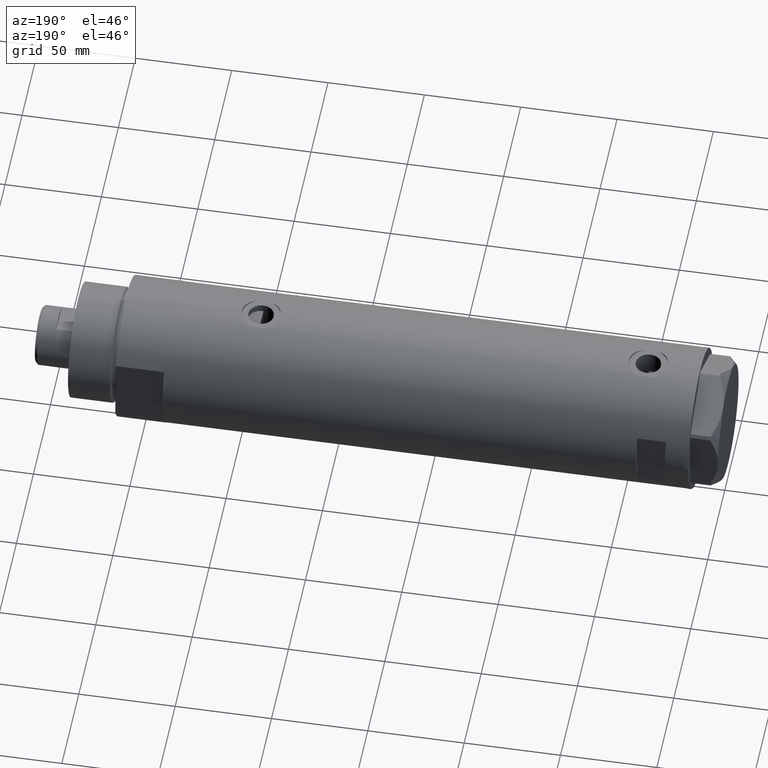
[diagram: clean part render]
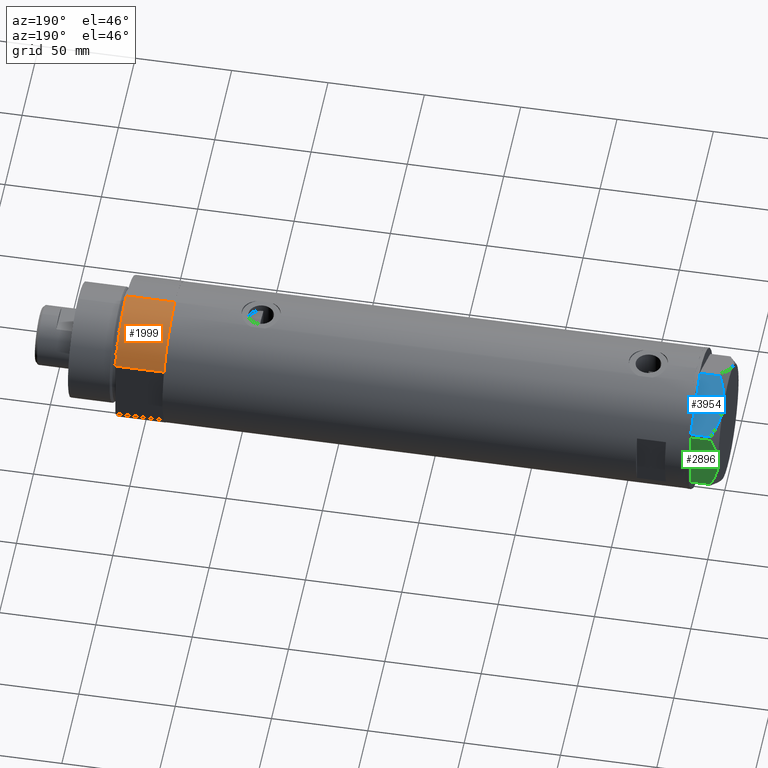
[diagram: same view with three faces highlighted in distinct colors, each labeled with its STEP entity id]
A machine part, auxiliary view with three faces highlighted in distinct colors.
Their STEP definitions:

[orange] entity #1999 — the highlighted cylindrical surface (partial cylindrical patch) has radius 36.5 mm, axis along (-1, -0, 0).
#14 = AXIS2_PLACEMENT_3D ( 'NONE', #2878, #2903, #1840 ) ;
#91 = VECTOR ( 'NONE', #2256, 1000.000000000000000 ) ;
#161 = AXIS2_PLACEMENT_3D ( 'NONE', #4459, #4144, #4121 ) ;
#296 = EDGE_CURVE ( 'NONE', #1375, #2864, #2230, .T. ) ;
#331 = EDGE_CURVE ( 'NONE', #1708, #2864, #2462, .T. ) ;
#518 = CARTESIAN_POINT ( 'NONE',  ( -17.55704986607943141, 32.00000000000000000, 0.000000000000000000 ) ) ;
#539 = DIRECTION ( 'NONE',  ( -0.000000000000000000, -0.000000000000000000, -1.000000000000000000 ) ) ;
#766 = CARTESIAN_POINT ( 'NONE',  ( -36.50000000000000000, 0.000000000000000000, 0.000000000000000000 ) ) ;
#842 = ORIENTED_EDGE ( 'NONE', *, *, #331, .T. ) ;
#1194 = CARTESIAN_POINT ( 'NONE',  ( -36.50000000000000000, 0.000000000000000000, 25.19999999999999929 ) ) ;
#1295 = CIRCLE ( 'NONE', #14, 36.50000000000000000 ) ;
#1375 = VERTEX_POINT ( 'NONE', #1972 ) ;
#1394 = ORIENTED_EDGE ( 'NONE', *, *, #1869, .F. ) ;
#1517 = EDGE_LOOP ( 'NONE', ( #3541, #1394, #2827, #842 ) ) ;
#1652 = VERTEX_POINT ( 'NONE', #2472 ) ;
#1708 = VERTEX_POINT ( 'NONE', #3754 ) ;
#1810 = AXIS2_PLACEMENT_3D ( 'NONE', #2282, #3360, #3671 ) ;
#1840 = DIRECTION ( 'NONE',  ( 1.000000000000000000, 0.000000000000000000, 0.000000000000000000 ) ) ;
#1869 = EDGE_CURVE ( 'NONE', #1652, #1375, #1295, .T. ) ;
#1972 = CARTESIAN_POINT ( 'NONE',  ( -36.50000000000000000, 0.000000000000000000, 25.19999999999999929 ) ) ;
#1999 = ADVANCED_FACE ( 'NONE', ( #4200 ), #4436, .T. ) ;
#2230 = LINE ( 'NONE', #1194, #3944 ) ;
#2256 = DIRECTION ( 'NONE',  ( -0.000000000000000000, -0.000000000000000000, 1.000000000000000000 ) ) ;
#2282 = CARTESIAN_POINT ( 'NONE',  ( 0.000000000000000000, 0.000000000000000000, 0.000000000000000000 ) ) ;
#2462 = CIRCLE ( 'NONE', #1810, 36.50000000000000000 ) ;
#2472 = CARTESIAN_POINT ( 'NONE',  ( -17.55704986607943496, 32.00000000000000000, 25.19999999999999929 ) ) ;
#2545 = EDGE_CURVE ( 'NONE', #1708, #1652, #3494, .T. ) ;
#2827 = ORIENTED_EDGE ( 'NONE', *, *, #2545, .F. ) ;
#2864 = VERTEX_POINT ( 'NONE', #766 ) ;
#2878 = CARTESIAN_POINT ( 'NONE',  ( 0.000000000000000000, 0.000000000000000000, 25.19999999999999929 ) ) ;
#2903 = DIRECTION ( 'NONE',  ( 0.000000000000000000, 0.000000000000000000, 1.000000000000000000 ) ) ;
#3360 = DIRECTION ( 'NONE',  ( 0.000000000000000000, 0.000000000000000000, 1.000000000000000000 ) ) ;
#3494 = LINE ( 'NONE', #518, #91 ) ;
#3541 = ORIENTED_EDGE ( 'NONE', *, *, #296, .F. ) ;
#3671 = DIRECTION ( 'NONE',  ( 1.000000000000000000, 0.000000000000000000, 0.000000000000000000 ) ) ;
#3754 = CARTESIAN_POINT ( 'NONE',  ( -17.55704986607943141, 32.00000000000000000, 0.000000000000000000 ) ) ;
#3944 = VECTOR ( 'NONE', #539, 1000.000000000000000 ) ;
#4121 = DIRECTION ( 'NONE',  ( -1.000000000000000000, 0.000000000000000000, 0.000000000000000000 ) ) ;
#4144 = DIRECTION ( 'NONE',  ( -0.000000000000000000, -0.000000000000000000, -1.000000000000000000 ) ) ;
#4200 = FACE_OUTER_BOUND ( 'NONE', #1517, .T. ) ;
#4436 = CYLINDRICAL_SURFACE ( 'NONE', #161, 36.50000000000000000 ) ;
#4459 = CARTESIAN_POINT ( 'NONE',  ( 0.000000000000000000, 0.000000000000000000, 25.19999999999999929 ) ) ;

[blue] entity #3954 — the highlighted planar face has unit normal (-0, -0.5, -0.866).
#134 = CARTESIAN_POINT ( 'NONE',  ( 0.9699484522385750651, -34.08101615137752560, 14.50000000000000000 ) ) ;
#196 = CARTESIAN_POINT ( 'NONE',  ( 19.82219921729533141, -23.19666409734169221, 14.10092492974135503 ) ) ;
#242 = CARTESIAN_POINT ( 'NONE',  ( 10.11505054612624477, -28.80108899570488035, 14.00566141361761296 ) ) ;
#358 = VECTOR ( 'NONE', #3972, 1000.000000000000000 ) ;
#410 = CARTESIAN_POINT ( 'NONE',  ( 0.9699484522384129725, -34.08101615137761797, 10.40518423703596262 ) ) ;
#467 = LINE ( 'NONE', #134, #728 ) ;
#481 = CARTESIAN_POINT ( 'NONE',  ( 5.430403497542005020, -31.50577123026336679, 12.63511531451933045 ) ) ;
#621 = ORIENTED_EDGE ( 'NONE', *, *, #2449, .T. ) ;
#625 = VERTEX_POINT ( 'NONE', #4274 ) ;
#728 = VECTOR ( 'NONE', #1200, 1000.000000000000000 ) ;
#812 = LINE ( 'NONE', #1162, #2708 ) ;
#818 = PLANE ( 'NONE',  #875 ) ;
#875 = AXIS2_PLACEMENT_3D ( 'NONE', #1435, #2440, #1760 ) ;
#1082 = EDGE_LOOP ( 'NONE', ( #4373, #621, #2578, #2186, #3443 ) ) ;
#1162 = CARTESIAN_POINT ( 'NONE',  ( 29.03005154776141694, -17.88050807568878042, 14.50000000000000000 ) ) ;
#1200 = DIRECTION ( 'NONE',  ( 0.000000000000000000, 0.000000000000000000, -1.000000000000000000 ) ) ;
#1246 = EDGE_CURVE ( 'NONE', #625, #2180, #4448, .T. ) ;
#1280 = CARTESIAN_POINT ( 'NONE',  ( 0.9699484522385750651, -34.08101615137752560, 0.000000000000000000 ) ) ;
#1433 = CARTESIAN_POINT ( 'NONE',  ( -5.841958412462644145E-15, -34.64101615137753498, 0.000000000000000000 ) ) ;
#1435 = CARTESIAN_POINT ( 'NONE',  ( -5.841958412462644145E-15, -34.64101615137753498, 14.50000000000000000 ) ) ;
#1542 = CARTESIAN_POINT ( 'NONE',  ( 29.03005154776142049, -17.88050807568878042, 10.40518423703603901 ) ) ;
#1563 = CARTESIAN_POINT ( 'NONE',  ( 25.09761465865700103, -20.15090157218441647, 12.31959434659020047 ) ) ;
#1588 = CARTESIAN_POINT ( 'NONE',  ( 26.80734602959450541, -19.16378770493171402, 11.56973717813738212 ) ) ;
#1607 = CARTESIAN_POINT ( 'NONE',  ( 29.03005154776141694, -17.88050807568878042, 0.000000000000000000 ) ) ;
#1635 = CARTESIAN_POINT ( 'NONE',  ( 13.77383861939864218, -26.68868671669325821, 14.47500996539162088 ) ) ;
#1750 = EDGE_CURVE ( 'NONE', #2700, #2738, #3605, .T. ) ;
#1760 = DIRECTION ( 'NONE',  ( -0.8660254037844389297, -0.4999999999999996114, 0.000000000000000000 ) ) ;
#1871 = CARTESIAN_POINT ( 'NONE',  ( 8.929227268745744794, -29.48572438411182262, 13.71922620632299861 ) ) ;
#1887 = CARTESIAN_POINT ( 'NONE',  ( 22.77266513462829067, -21.49321180573469547, 13.19311392138146566 ) ) ;
#1933 = DIRECTION ( 'NONE',  ( 0.000000000000000000, 0.000000000000000000, 1.000000000000000000 ) ) ;
#2180 = VERTEX_POINT ( 'NONE', #4255 ) ;
#2186 = ORIENTED_EDGE ( 'NONE', *, *, #4384, .T. ) ;
#2219 = EDGE_CURVE ( 'NONE', #3064, #625, #3967, .T. ) ;
#2440 = DIRECTION ( 'NONE',  ( -0.4999999999999996114, 0.8660254037844389297, 0.000000000000000000 ) ) ;
#2449 = EDGE_CURVE ( 'NONE', #3064, #2700, #467, .T. ) ;
#2536 = CARTESIAN_POINT ( 'NONE',  ( 0.9699484522384129725, -34.08101615137761797, 10.40518423703596262 ) ) ;
#2578 = ORIENTED_EDGE ( 'NONE', *, *, #1750, .T. ) ;
#2596 = CARTESIAN_POINT ( 'NONE',  ( 24.52256617298829156, -20.48290597018233328, 12.55468001512206833 ) ) ;
#2700 = VERTEX_POINT ( 'NONE', #1280 ) ;
#2708 = VECTOR ( 'NONE', #1933, 1000.000000000000000 ) ;
#2738 = VERTEX_POINT ( 'NONE', #1607 ) ;
#2974 = CARTESIAN_POINT ( 'NONE',  ( 17.43031680809873762, -24.57761805016126644, 14.50000000000000711 ) ) ;
#2998 = CARTESIAN_POINT ( 'NONE',  ( 27.92668431253404293, -18.51753744596231854, 11.01056656432685266 ) ) ;
#3044 = CARTESIAN_POINT ( 'NONE',  ( 14.38812268849981457, -26.33402964403881086, 14.50000000000000533 ) ) ;
#3064 = VERTEX_POINT ( 'NONE', #410 ) ;
#3093 = CARTESIAN_POINT ( 'NONE',  ( 14.99999999999998757, -25.98076211353316722, 14.50000000000000000 ) ) ;
#3240 = FACE_OUTER_BOUND ( 'NONE', #1082, .T. ) ;
#3417 = CARTESIAN_POINT ( 'NONE',  ( 11.92931894229900891, -27.75362064879230317, 14.29910535634587276 ) ) ;
#3443 = ORIENTED_EDGE ( 'NONE', *, *, #1246, .F. ) ;
#3600 = CARTESIAN_POINT ( 'NONE',  ( 3.175372020745254709, -32.80771426042306160, 11.61522964162834803 ) ) ;
#3605 = LINE ( 'NONE', #1433, #358 ) ;
#3617 = CARTESIAN_POINT ( 'NONE',  ( 14.99999999999998757, -25.98076211353316722, 14.50000000000000000 ) ) ;
#3954 = ADVANCED_FACE ( 'NONE', ( #3240 ), #818, .F. ) ;
#3967 = B_SPLINE_CURVE_WITH_KNOTS ( 'NONE', 3,
 ( #2536, #3600, #481, #1871, #242, #3417, #4439, #1635, #3044, #3093 ),
 .UNSPECIFIED., .F., .F.,
 ( 4, 2, 2, 2, 4 ),
 ( 0.001230196178133386971, 0.009592363676680742274, 0.01377344742595442220, 0.01586398930059126217, 0.01795453117522810213 ),
 .UNSPECIFIED. ) ;
#3972 = DIRECTION ( 'NONE',  ( 0.8660254037844389297, 0.4999999999999996114, 0.000000000000000000 ) ) ;
#4024 = CARTESIAN_POINT ( 'NONE',  ( 23.36084816446653889, -21.15362417512481130, 12.99122625442232604 ) ) ;
#4255 = CARTESIAN_POINT ( 'NONE',  ( 29.03005154776142049, -17.88050807568878042, 10.40518423703603901 ) ) ;
#4274 = CARTESIAN_POINT ( 'NONE',  ( 14.99999999999998757, -25.98076211353316722, 14.50000000000000000 ) ) ;
#4373 = ORIENTED_EDGE ( 'NONE', *, *, #2219, .F. ) ;
#4384 = EDGE_CURVE ( 'NONE', #2738, #2180, #812, .T. ) ;
#4439 = CARTESIAN_POINT ( 'NONE',  ( 12.54037849421161077, -27.40082525200466179, 14.37423503257921986 ) ) ;
#4448 = B_SPLINE_CURVE_WITH_KNOTS ( 'NONE', 3,
 ( #3617, #2974, #196, #1887, #4024, #2596, #1563, #1588, #2998, #1542 ),
 .UNSPECIFIED., .F., .F.,
 ( 4, 2, 2, 2, 4 ),
 ( 0.01795453117522810213, 0.02625795893839791284, 0.02833381587919036812, 0.03040967281998282340, 0.03456138670156773396 ),
 .UNSPECIFIED. ) ;

[green] entity #2896 — the highlighted planar face has unit normal (0, -1, -0).
#50 = CARTESIAN_POINT ( 'NONE',  ( 30.00000000000000355, -16.20050807568876650, 10.40518423703603368 ) ) ;
#175 = CARTESIAN_POINT ( 'NONE',  ( 29.99999999999999645, 0.7060353153488403422, 14.50000000000000355 ) ) ;
#244 = ORIENTED_EDGE ( 'NONE', *, *, #3620, .F. ) ;
#327 = VERTEX_POINT ( 'NONE', #4356 ) ;
#408 = LINE ( 'NONE', #1406, #4381 ) ;
#425 = ORIENTED_EDGE ( 'NONE', *, *, #2922, .F. ) ;
#533 = CARTESIAN_POINT ( 'NONE',  ( 29.99999999999999289, 16.20050807568875229, 10.40518423703605322 ) ) ;
#628 = B_SPLINE_CURVE_WITH_KNOTS ( 'NONE', 3,
 ( #1608, #175, #943, #1186, #854, #4040, #1235, #3662, #2685, #1966, #919, #2316, #4395, #533 ),
 .UNSPECIFIED., .F., .F.,
 ( 4, 2, 2, 2, 2, 2, 4 ),
 ( 0.06183748343640974032, 0.06393495742991756048, 0.06603243142342538063, 0.07022737941044103482, 0.07442232739745667514, 0.07651980139096450917, 0.07861727538447232932 ),
 .UNSPECIFIED. ) ;
#633 = CARTESIAN_POINT ( 'NONE',  ( 29.99999999999999289, 16.20050807568875584, 0.000000000000000000 ) ) ;
#854 = CARTESIAN_POINT ( 'NONE',  ( 29.99999999999999645, 3.526431665117132574, 14.30125973663612982 ) ) ;
#895 = EDGE_CURVE ( 'NONE', #327, #4194, #1248, .T. ) ;
#911 = CARTESIAN_POINT ( 'NONE',  ( 30.00000000000000355, -17.32050807568877460, 0.000000000000000000 ) ) ;
#919 = CARTESIAN_POINT ( 'NONE',  ( 29.99999999999999289, 13.63320717147166761, 11.55272916346385692 ) ) ;
#943 = CARTESIAN_POINT ( 'NONE',  ( 30.00000000000000000, 1.418661615092703387, 14.47469700449902952 ) ) ;
#1067 = CARTESIAN_POINT ( 'NONE',  ( 30.00000000000000355, -13.64854889245357761, 11.56384586935411107 ) ) ;
#1084 = AXIS2_PLACEMENT_3D ( 'NONE', #3552, #1757, #2813 ) ;
#1115 = EDGE_CURVE ( 'NONE', #3885, #327, #3249, .T. ) ;
#1186 = CARTESIAN_POINT ( 'NONE',  ( 29.99999999999998579, 2.827567415490793934, 14.37523681947611287 ) ) ;
#1235 = CARTESIAN_POINT ( 'NONE',  ( 29.99999999999999645, 6.973771051792334141, 13.72753822183687866 ) ) ;
#1248 = LINE ( 'NONE', #911, #3482 ) ;
#1366 = CARTESIAN_POINT ( 'NONE',  ( 30.00000000000000355, -10.99748736931233672, 12.55407623651775140 ) ) ;
#1406 = CARTESIAN_POINT ( 'NONE',  ( 29.99999999999999289, 16.20050807568875584, 14.50000000000000000 ) ) ;
#1408 = CARTESIAN_POINT ( 'NONE',  ( 29.99999999999999645, -14.93680064777130845, 11.00564802993686619 ) ) ;
#1431 = CARTESIAN_POINT ( 'NONE',  ( 30.00000000000000000, -5.593935073701695515, 14.09487059093540751 ) ) ;
#1544 = CARTESIAN_POINT ( 'NONE',  ( 29.99999999999999289, 16.20050807568875229, 10.40518423703605322 ) ) ;
#1608 = CARTESIAN_POINT ( 'NONE',  ( 30.00000000000000000, 9.013887592422954582E-15, 14.50000000000000000 ) ) ;
#1639 = DIRECTION ( 'NONE',  ( -3.004629197474318063E-16, 1.000000000000000000, 0.000000000000000000 ) ) ;
#1672 = ORIENTED_EDGE ( 'NONE', *, *, #1115, .T. ) ;
#1757 = DIRECTION ( 'NONE',  ( -1.000000000000000000, -3.004629197474318556E-16, 0.000000000000000000 ) ) ;
#1803 = CARTESIAN_POINT ( 'NONE',  ( 29.99999999999999645, -8.981118657900115210, 13.19130745470828892 ) ) ;
#1966 = CARTESIAN_POINT ( 'NONE',  ( 29.99999999999999289, 12.97715359595205520, 11.81918444541430979 ) ) ;
#2083 = VECTOR ( 'NONE', #4285, 1000.000000000000000 ) ;
#2126 = CARTESIAN_POINT ( 'NONE',  ( 29.99999999999999645, -11.66725319103953495, 12.31690447555093115 ) ) ;
#2316 = CARTESIAN_POINT ( 'NONE',  ( 29.99999999999999645, 14.92797448277035066, 10.99622797424085796 ) ) ;
#2465 = PLANE ( 'NONE',  #1084 ) ;
#2497 = CARTESIAN_POINT ( 'NONE',  ( 29.99999999999999289, -9.655259153795981319, 12.99093232113973251 ) ) ;
#2676 = ORIENTED_EDGE ( 'NONE', *, *, #895, .T. ) ;
#2685 = CARTESIAN_POINT ( 'NONE',  ( 29.99999999999998579, 11.00230860792645871, 12.56933207488872206 ) ) ;
#2813 = DIRECTION ( 'NONE',  ( 3.004629197474318556E-16, -1.000000000000000000, 0.000000000000000000 ) ) ;
#2857 = CARTESIAN_POINT ( 'NONE',  ( 30.00000000000000355, -16.20050807568876294, 14.50000000000000000 ) ) ;
#2896 = ADVANCED_FACE ( 'NONE', ( #4192 ), #2465, .F. ) ;
#2922 = EDGE_CURVE ( 'NONE', #3885, #3597, #3452, .T. ) ;
#3212 = CARTESIAN_POINT ( 'NONE',  ( 30.00000000000000000, 9.013887592422954582E-15, 14.50000000000000000 ) ) ;
#3249 = LINE ( 'NONE', #2857, #2083 ) ;
#3356 = VERTEX_POINT ( 'NONE', #1544 ) ;
#3452 = B_SPLINE_CURVE_WITH_KNOTS ( 'NONE', 3,
 ( #50, #1408, #1067, #2126, #1366, #2497, #1803, #1431, #3530, #3212 ),
 .UNSPECIFIED., .F., .F.,
 ( 4, 2, 2, 2, 4 ),
 ( 0.04501738275285961655, 0.04922240792374714402, 0.05132492050919090776, 0.05342743309463467843, 0.06183748343640974032 ),
 .UNSPECIFIED. ) ;
#3482 = VECTOR ( 'NONE', #1639, 1000.000000000000000 ) ;
#3530 = CARTESIAN_POINT ( 'NONE',  ( 30.00000000000000000, -2.830925467268480933, 14.50000000000000355 ) ) ;
#3552 = CARTESIAN_POINT ( 'NONE',  ( 30.00000000000000355, -17.32050807568877460, 14.50000000000000000 ) ) ;
#3597 = VERTEX_POINT ( 'NONE', #3999 ) ;
#3620 = EDGE_CURVE ( 'NONE', #3597, #3356, #628, .T. ) ;
#3662 = CARTESIAN_POINT ( 'NONE',  ( 29.99999999999998579, 9.671229349009047738, 13.00645148086949554 ) ) ;
#3819 = ORIENTED_EDGE ( 'NONE', *, *, #4336, .T. ) ;
#3873 = DIRECTION ( 'NONE',  ( 0.000000000000000000, 0.000000000000000000, 1.000000000000000000 ) ) ;
#3885 = VERTEX_POINT ( 'NONE', #3928 ) ;
#3928 = CARTESIAN_POINT ( 'NONE',  ( 30.00000000000000355, -16.20050807568876650, 10.40518423703603368 ) ) ;
#3999 = CARTESIAN_POINT ( 'NONE',  ( 30.00000000000000000, 9.013887592422954582E-15, 14.50000000000000000 ) ) ;
#4040 = CARTESIAN_POINT ( 'NONE',  ( 29.99999999999998934, 5.607365453019633961, 14.01139032121648320 ) ) ;
#4192 = FACE_OUTER_BOUND ( 'NONE', #4243, .T. ) ;
#4194 = VERTEX_POINT ( 'NONE', #633 ) ;
#4243 = EDGE_LOOP ( 'NONE', ( #425, #1672, #2676, #3819, #244 ) ) ;
#4285 = DIRECTION ( 'NONE',  ( 0.000000000000000000, 0.000000000000000000, -1.000000000000000000 ) ) ;
#4336 = EDGE_CURVE ( 'NONE', #4194, #3356, #408, .T. ) ;
#4356 = CARTESIAN_POINT ( 'NONE',  ( 30.00000000000000355, -16.20050807568876294, 0.000000000000000000 ) ) ;
#4381 = VECTOR ( 'NONE', #3873, 1000.000000000000000 ) ;
#4395 = CARTESIAN_POINT ( 'NONE',  ( 30.00000000000000000, 15.56759648729806145, 10.70591879357994003 ) ) ;